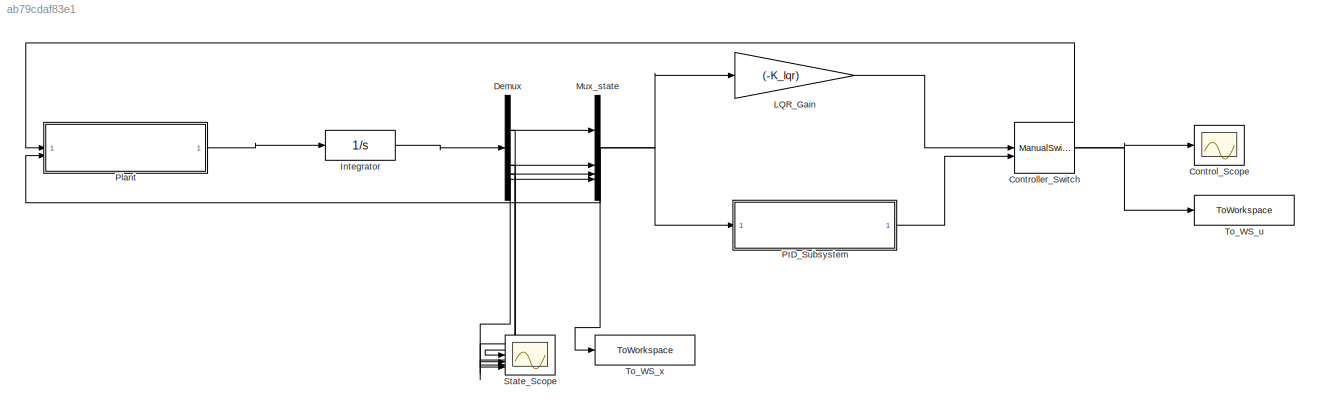
MODEL slx_ab79cdaf83e1
KIND model
CONFIG AbsTol = auto
CONFIG EnableMultiTasking = off
CONFIG FixedStep = auto
CONFIG MaxStep = 0.01
CONFIG MinStep = auto
CONFIG RelTol = 1e-6
CONFIG SampleTimeConstraint = Unconstrained
CONFIG SolverName = ode45
CONFIG StartTime = 0.0
CONFIG StopTime = 10
BLOCK [Scope] Control_Scope
  Floating = off
  GraphicalSettings = {"GraphicalSettings":{"LegacySettings":true,"Style":{"Style":{"PlotType":"Auto"}}}}
  NumInputPorts = 1
  WasSavedAsWebScope = on
BLOCK [ManualSwitch] Controller_Switch
BLOCK [Demux] Demux
BLOCK [Integrator] Integrator
  InitialCondition = x0
BLOCK [Gain] LQR_Gain
  Gain = (-K_lqr)
  Multiplication = Matrix(K*u)
BLOCK [Mux] Mux_state
  DisplayOption = bar
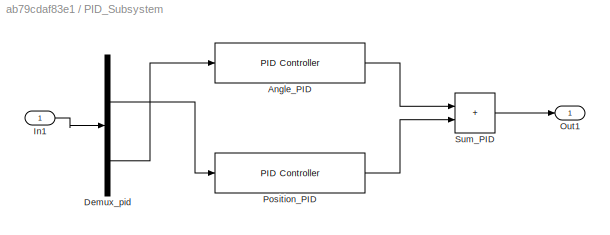
BLOCK [SubSystem] PID_Subsystem
BLOCK [Reference] PID_Subsystem/Angle_PID  REF=slpidlib/PID Controller
  SourceBlock = slpidlib/PID Controller
  SourceType = PID 1dof
BLOCK [Demux] PID_Subsystem/Demux_pid
BLOCK [Inport] PID_Subsystem/In1
BLOCK [Outport] PID_Subsystem/Out1
BLOCK [Reference] PID_Subsystem/Position_PID  REF=slpidlib/PID Controller
  SourceBlock = slpidlib/PID Controller
  SourceType = PID 1dof
BLOCK [Sum] PID_Subsystem/Sum_PID
  IconShape = rectangular
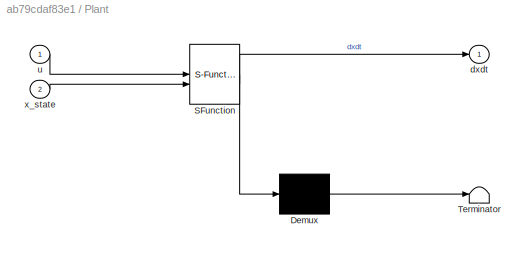
BLOCK [SubSystem] Plant
  ErrorFcn = Stateflow.Translate.translate
  PermitHierarchicalResolution = ExplicitOnly
  SFBlockType = MATLAB Function
  TreatAsAtomicUnit = on
BLOCK [Demux] Plant/ Demux 
  Outputs = 1
BLOCK [S-Function] Plant/ SFunction 
  EnableBusSupport = off
  FunctionName = sf_sfun
  PortCounts = [2 2]
  SFcnIsStateOwnerBlock = off
  SFunctionDeploymentMode = off
  Tag = Stateflow S-Function 2
BLOCK [Terminator] Plant/ Terminator 
BLOCK [Outport] Plant/dxdt
BLOCK [Inport] Plant/u
BLOCK [Inport] Plant/x_state
  Port = 2
BLOCK [Scope] State_Scope
  Floating = off
  GraphicalSettings = {"GraphicalSettings":{"LegacySettings":true,"Style":{"Style":{"PlotType":"Auto"}}}}
  NumInputPorts = 4
  WasSavedAsWebScope = on
BLOCK [ToWorkspace] To_WS_u
  FixptAsFi = on
  MaxDataPoints = inf
  SampleTime = -1
  VariableName = u_out
BLOCK [ToWorkspace] To_WS_x
  FixptAsFi = on
  MaxDataPoints = inf
  SampleTime = -1
  VariableName = x_out
NET Controller_Switch:1 -> Control_Scope:1, Plant:1, To_WS_u:1
NET Demux:1 -> Mux_state:1, State_Scope:1
NET Demux:2 -> Mux_state:2, State_Scope:2
NET Demux:3 -> Mux_state:3, State_Scope:3
NET Demux:4 -> Mux_state:4, State_Scope:4
LINE Integrator:1 -> Demux:1
LINE LQR_Gain:1 -> Controller_Switch:1
NET Mux_state:1 -> LQR_Gain:1, PID_Subsystem:1, Plant:2, To_WS_x:1
LINE PID_Subsystem/Angle_PID:1 -> PID_Subsystem/Sum_PID:1
LINE PID_Subsystem/Demux_pid:1 -> PID_Subsystem/Position_PID:1
LINE PID_Subsystem/Demux_pid:3 -> PID_Subsystem/Angle_PID:1
LINE PID_Subsystem/In1:1 -> PID_Subsystem/Demux_pid:1
LINE PID_Subsystem/Position_PID:1 -> PID_Subsystem/Sum_PID:2
LINE PID_Subsystem/Sum_PID:1 -> PID_Subsystem/Out1:1
LINE PID_Subsystem:1 -> Controller_Switch:2
LINE Plant:1 -> Integrator:1
note: NET lines group one-source signal fan-out (src -> all destinations, sorted); 1:1 wires keep LINE
CHART Plant states=1 transitions=1
  STATE_LABEL 'eML_blk_kernel()'
  STATE_LABEL 'SCRIPT:\nfunction dxdt = plant_fcn(u, x_state)\n%#codegen\n% 台車型倒立振子の非線形運動方程式\n% 状態: x_state = [x; x_dot; theta; theta_dot]\n% 入力: u = F (台車への水平力)\n\ndxdt = zeros(4,1);\n\n% params.m に合わせた簡略プラントのパラメータ\nM = 0.57;    % 台車質量 [kg]\\nm = 0.0303;    % 振子質量 [kg]\\nl = 0.15;    % 振子長さ [m]\\ng = 9.81;    % 重力加速度 [m/s^2]\\nb = 0;    % 台車方向粘性摩擦 [N*s/m]\\n\nx_dot   = x_state(2);\ntheta   = x_state(3);\nth_dot  = x_state(4);\nF ...<+280ch>'
CHART  states=0 transitions=0
